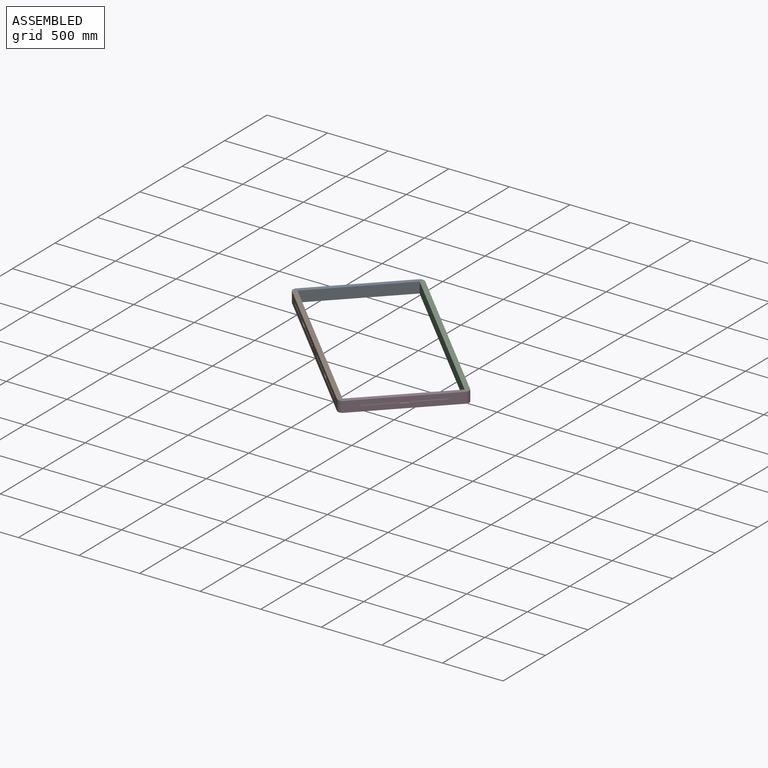
[diagram: assembled view]
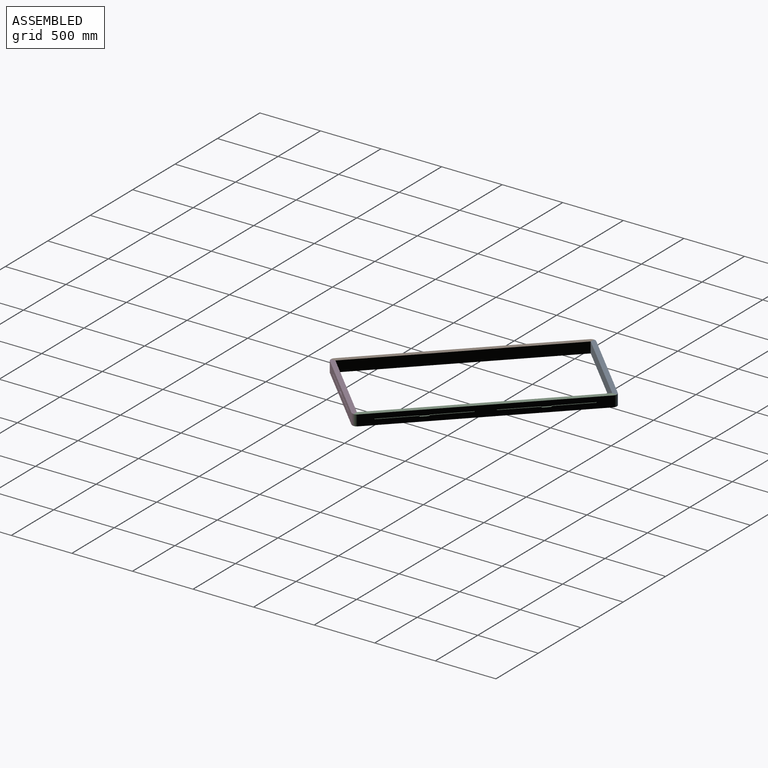
[diagram: assembled view, second angle]
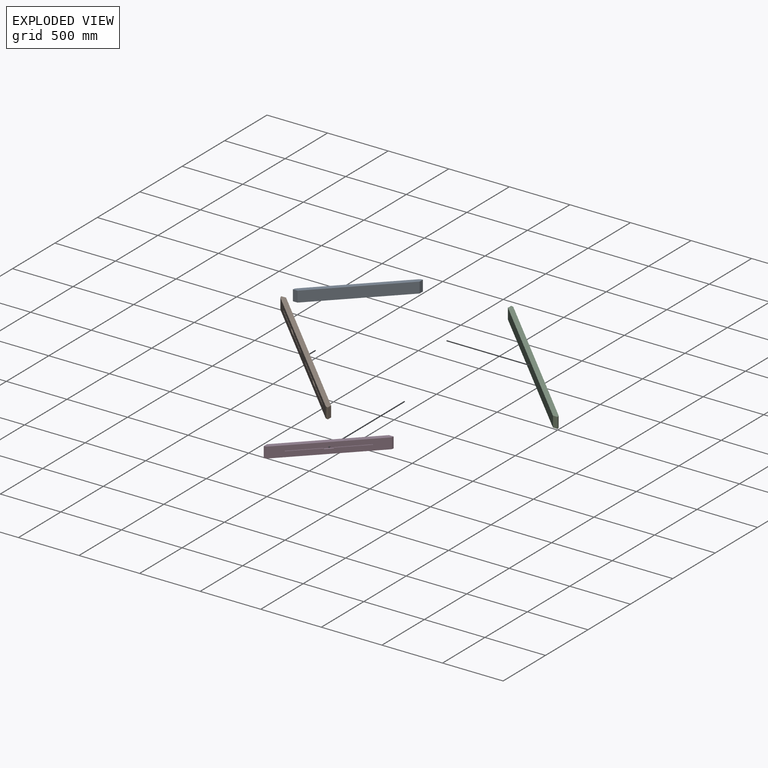
[diagram: exploded view]
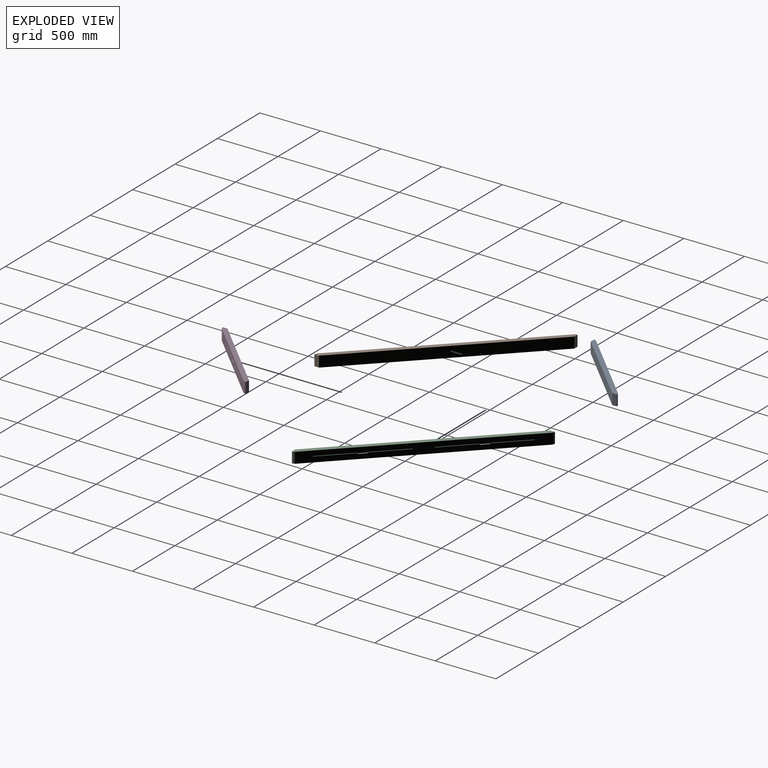
[diagram: exploded view, second angle]
ASSEMBLY  parts=4 mates=3
PART A: 25 faces, bbox 38.1x892.1x88.9 mm
  f0: plane 892.08x38.1mm, normal (0,0,1), area 33075.5mm2, adj f2,f3,f21,f22,f23,f24
  f1: plane 892.08x38.1mm, normal (0,0,-1), area 33075.5mm2, adj f2,f3,f21,f22,f23,f24
  f2: plane 838.2x88.9mm, normal (-1,0,0), area 69761.5mm2, adj f0,f1,f6,f7,f9,f10,f11,f12
  f3: plane 838.2x88.9mm, normal (1,0,0), area 74516mm2, adj f0,f1,f21,f22
  f4: plane 622.3x19.05mm, normal (-1,0,0), area 11776.9mm2, adj f6,f7,f19,f20
  f5: plane 282.58x19.05mm, normal (1,0,0), area 3511.2mm2, adj f6,f7,f9,f10,f14,f16,f18,f20
  f6: plane 603.25x12.7mm, normal (0,0,-1), area 4193.5mm2, adj f2,f4,f5,f8,f13,f14,f19,f20
  f7: plane 603.25x12.7mm, normal (0,0,1), area 4193.5mm2, adj f2,f4,f5,f8,f15,f16,f19,f20
  f8: plane 282.58x19.05mm, normal (1,0,0), area 3511.2mm2, adj f6,f7,f11,f12,f13,f15,f17,f19
  f9: plane 264.07x6.35mm, normal (0,0,1), area 1676.8mm2, adj f2,f5,f16,f18
  f10: plane 264.07x6.35mm, normal (0,0,-1), area 1676.8mm2, adj f2,f5,f14,f18
  f11: plane 264.07x6.35mm, normal (0,0,1), area 1676.8mm2, adj f2,f8,f15,f17
  f12: plane 264.07x6.35mm, normal (0,0,-1), area 1676.8mm2, adj f2,f8,f13,f17
  f13: cylinder r=9.53mm len=8.98mm, axis (-1,0,0), area 74.5mm2, adj f2,f6,f8,f12
  f14: cylinder r=9.53mm len=8.98mm, axis (-1,0,0), area 74.5mm2, adj f2,f5,f6,f10
  f15: cylinder r=9.53mm len=8.98mm, axis (-1,0,0), area 74.5mm2, adj f2,f7,f8,f11
  f16: cylinder r=9.53mm len=8.98mm, axis (-1,0,0), area 74.5mm2, adj f2,f5,f7,f9
  f17: cylinder r=3.17mm len=6.35mm, axis (-1,0,0), area 63.3mm2, adj f2,f8,f11,f12
  f18: cylinder r=3.17mm len=6.35mm, axis (-1,0,0), area 63.3mm2, adj f2,f5,f9,f10
  f19: cylinder r=9.53mm len=19.05mm, axis (-1,0,0), area 190mm2, adj f4,f6,f7,f8
  f20: cylinder r=9.53mm len=19.05mm, axis (-1,0,0), area 190mm2, adj f4,f5,f6,f7
  f21: plane 88.9x26.94mm, normal (0.71,0.71,0), area 3387.1mm2, adj f0,f1,f3,f24
  f22: plane 88.9x26.94mm, normal (0.71,-0.71,0), area 3387.1mm2, adj f0,f1,f3,f23
  f23: cylinder r=38.1mm len=88.9mm, axis (0,0,1), area 2660.2mm2, adj f0,f1,f2,f22
  f24: cylinder r=38.1mm len=88.9mm, axis (0,0,1), area 2660.2mm2, adj f0,f1,f2,f21
PART B: 42 faces, bbox 38.1x1806.5x88.9 mm
  f0: plane 1752.6x88.9mm, normal (-1,0,0), area 145329.5mm2, adj f1,f2,f3,f4,f5,f6,f7,f8
  f1: plane 1806.48x38.1mm, normal (0,0,1), area 67914.2mm2, adj f0,f13,f30,f31,f40,f41
  f2: plane 1806.48x38.1mm, normal (0,0,-1), area 67914.2mm2, adj f0,f13,f30,f31,f40,f41
  f3: plane 302.17x6.35mm, normal (0,0,1), area 1918.8mm2, adj f0,f9,f27,f37
  f4: plane 302.17x6.35mm, normal (0,0,1), area 1918.8mm2, adj f0,f10,f28,f36
  f5: plane 302.17x6.35mm, normal (0,0,-1), area 1918.8mm2, adj f0,f9,f27,f38
  f6: plane 302.17x6.35mm, normal (0,0,-1), area 1918.8mm2, adj f0,f10,f28,f39
  f7: plane 302.17x6.35mm, normal (0,0,1), area 1918.8mm2, adj f0,f12,f26,f33
  f8: plane 302.17x6.35mm, normal (0,0,-1), area 1918.8mm2, adj f0,f12,f26,f34
  f9: plane 320.68x19.05mm, normal (1,0,0), area 3995.1mm2, adj f3,f5,f20,f21,f23,f27,f37,f38
  f10: plane 320.68x19.05mm, normal (1,0,0), area 3995.1mm2, adj f4,f6,f20,f21,f25,f28,f36,f39
  f11: plane 320.68x19.05mm, normal (1,0,0), area 3995.1mm2, adj f14,f15,f17,f18,f24,f29,f32,f35
  f12: plane 320.68x19.05mm, normal (1,0,0), area 3995.1mm2, adj f7,f8,f17,f18,f22,f26,f33,f34
  f13: plane 1752.6x88.9mm, normal (1,0,0), area 155806.1mm2, adj f1,f2,f30,f31
  f14: plane 302.17x6.35mm, normal (0,0,1), area 1918.8mm2, adj f0,f11,f29,f32
  f15: plane 302.17x6.35mm, normal (0,0,-1), area 1918.8mm2, adj f0,f11,f29,f35
  f16: plane 698.5x19.05mm, normal (-1,0,0), area 13228.5mm2, adj f20,f21,f23,f25
  f17: plane 679.45x12.7mm, normal (0,0,-1), area 4677.4mm2, adj f0,f11,f12,f19,f22,f24,f34,f35
  f18: plane 679.45x12.7mm, normal (0,0,1), area 4677.4mm2, adj f0,f11,f12,f19,f22,f24,f32,f33
  f19: plane 698.5x19.05mm, normal (-1,0,0), area 13228.5mm2, adj f17,f18,f22,f24
  f20: plane 679.45x12.7mm, normal (0,0,-1), area 4677.4mm2, adj f0,f9,f10,f16,f23,f25,f38,f39
  f21: plane 679.45x12.7mm, normal (0,0,1), area 4677.4mm2, adj f0,f9,f10,f16,f23,f25,f36,f37
  f22: cylinder r=9.53mm len=19.05mm, axis (-1,0,0), area 190mm2, adj f12,f17,f18,f19
  f23: cylinder r=9.53mm len=19.05mm, axis (-1,0,0), area 190mm2, adj f9,f16,f20,f21
  f24: cylinder r=9.53mm len=19.05mm, axis (-1,0,0), area 190mm2, adj f11,f17,f18,f19
  f25: cylinder r=9.53mm len=19.05mm, axis (-1,0,0), area 190mm2, adj f10,f16,f20,f21
  f26: cylinder r=3.17mm len=6.35mm, axis (-1,0,0), area 63.3mm2, adj f0,f7,f8,f12
  f27: cylinder r=3.17mm len=6.35mm, axis (-1,0,0), area 63.3mm2, adj f0,f3,f5,f9
  f28: cylinder r=3.17mm len=6.35mm, axis (-1,0,0), area 63.3mm2, adj f0,f4,f6,f10
  f29: cylinder r=3.17mm len=6.35mm, axis (-1,0,0), area 63.3mm2, adj f0,f11,f14,f15
  f30: plane 88.9x26.94mm, normal (0.71,0.71,0), area 3387.1mm2, adj f1,f2,f13,f40
  f31: plane 88.9x26.94mm, normal (0.71,-0.71,0), area 3387.1mm2, adj f1,f2,f13,f41
  f32: cylinder r=9.53mm len=8.98mm, axis (-1,0,0), area 74.5mm2, adj f0,f11,f14,f18
  f33: cylinder r=9.53mm len=8.98mm, axis (-1,0,0), area 74.5mm2, adj f0,f7,f12,f18
  f34: cylinder r=9.53mm len=8.98mm, axis (-1,0,0), area 74.5mm2, adj f0,f8,f12,f17
  f35: cylinder r=9.53mm len=8.98mm, axis (-1,0,0), area 74.5mm2, adj f0,f11,f15,f17
  f36: cylinder r=9.53mm len=8.98mm, axis (-1,0,0), area 74.5mm2, adj f0,f4,f10,f21
  f37: cylinder r=9.53mm len=8.98mm, axis (-1,0,0), area 74.5mm2, adj f0,f3,f9,f21
  f38: cylinder r=9.53mm len=8.98mm, axis (-1,0,0), area 74.5mm2, adj f0,f5,f9,f20
  f39: cylinder r=9.53mm len=8.98mm, axis (-1,0,0), area 74.5mm2, adj f0,f6,f10,f20
  f40: cylinder r=38.1mm len=88.9mm, axis (0,0,1), area 2660.2mm2, adj f0,f1,f2,f30
  f41: cylinder r=38.1mm len=88.9mm, axis (0,0,1), area 2660.2mm2, adj f0,f1,f2,f31
PART C: same geometry as B
PART D: same geometry as A
PLACE A rot(axis=(-0.92,0.38,0),180deg) t=(-89.66,65.18,48.93)mm
PLACE B rot(axis=(0,0,1),45deg) t=(-89.66,113.66,-8.16)mm
PLACE C rot(axis=(0,0,-1),135deg) t=(1801.6,-581.4,-8.16)mm
PLACE D rot(axis=(0,0,1),135deg) t=(1155.02,-1179.5,-8.16)mm
MATE fastened C.f31 <-> A.f22  axis (-1,0,0) through (532.68,701.17,20.38)mm
MATE fastened B.f30 <-> A.f21  axis (0,1,0) through (-79.07,89.42,20.38)mm
MATE fastened C.f30 <-> D.f22  axis (0,-1,0) through (1791,-557.16,20.38)mm
